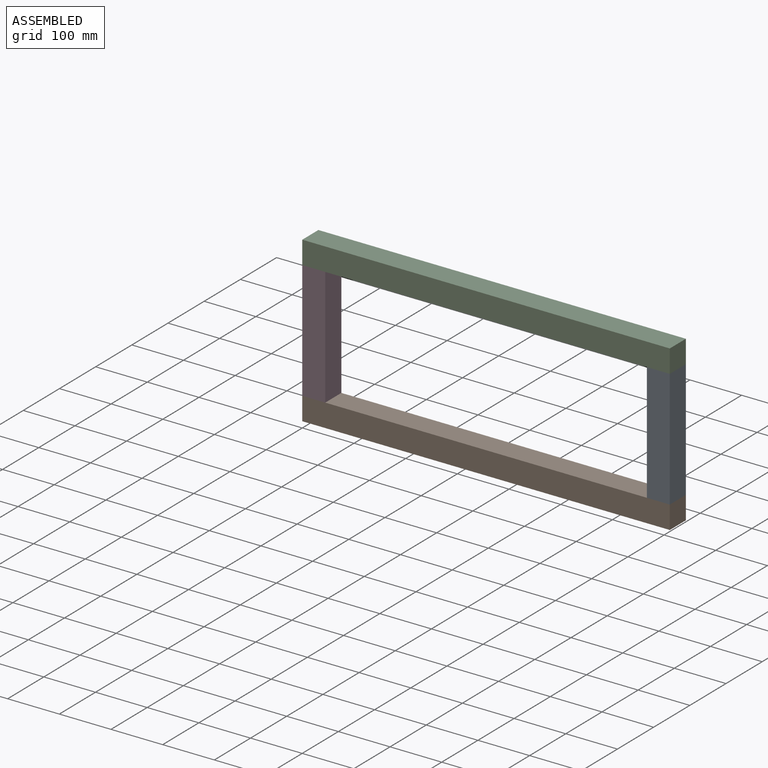
[diagram: assembled view]
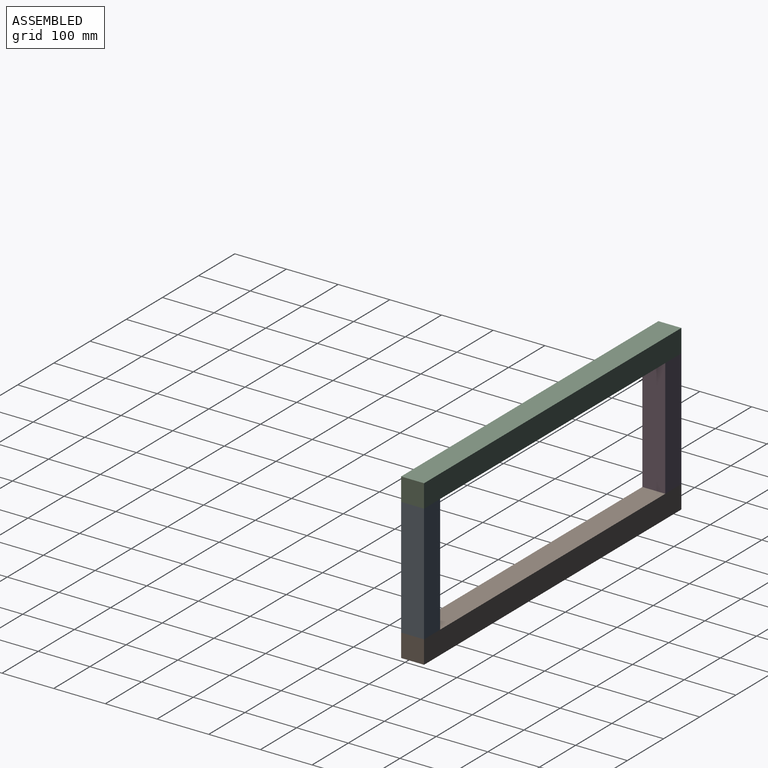
[diagram: assembled view, second angle]
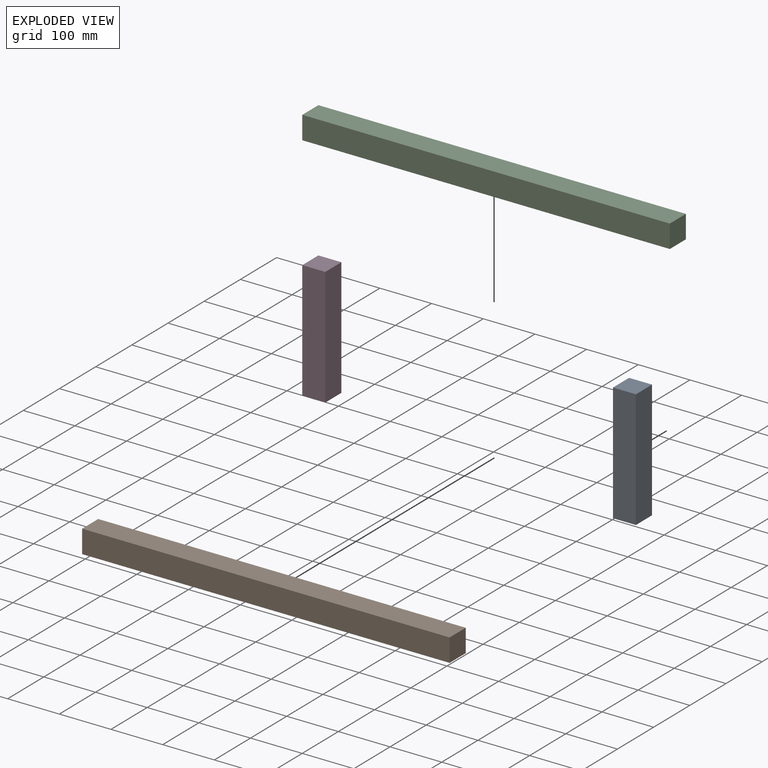
[diagram: exploded view]
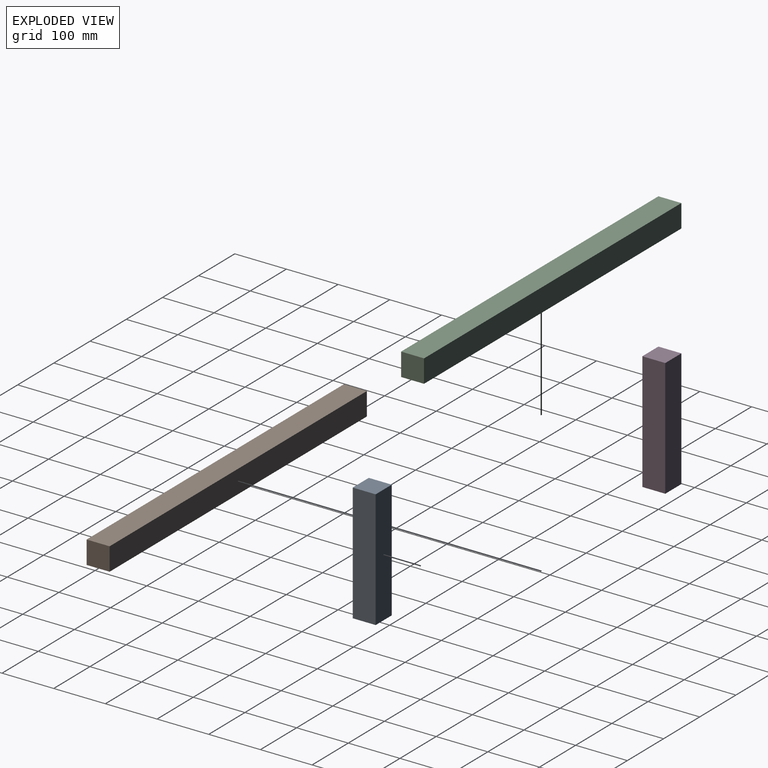
[diagram: exploded view, second angle]
ASSEMBLY  parts=4 mates=9
PART A: 6 faces, bbox 228.6x44.5x44.5 mm
  f0: plane 228.6x44.45mm, normal (0,1,0), area 10161.3mm2, adj f1,f3,f4,f5
  f1: plane 228.6x44.45mm, normal (0,0,1), area 10161.3mm2, adj f0,f2,f4,f5
  f2: plane 228.6x44.45mm, normal (0,-1,0), area 10161.3mm2, adj f1,f3,f4,f5
  f3: plane 228.6x44.45mm, normal (0,0,-1), area 10161.3mm2, adj f0,f2,f4,f5
  f4: plane 44.45x44.45mm, normal (1,0,0), area 1975.8mm2, adj f0,f1,f2,f3
  f5: plane 44.45x44.45mm, normal (-1,0,0), area 1975.8mm2, adj f0,f1,f2,f3
PART B: 6 faces, bbox 711.2x44.5x44.5 mm
  f0: plane 711.2x44.45mm, normal (0,0,1), area 31612.8mm2, adj f1,f3,f4,f5
  f1: plane 711.2x44.45mm, normal (0,-1,0), area 31612.8mm2, adj f0,f2,f4,f5
  f2: plane 711.2x44.45mm, normal (0,0,-1), area 31612.8mm2, adj f1,f3,f4,f5
  f3: plane 711.2x44.45mm, normal (0,1,0), area 31612.8mm2, adj f0,f2,f4,f5
  f4: plane 44.45x44.45mm, normal (1,0,0), area 1975.8mm2, adj f0,f1,f2,f3
  f5: plane 44.45x44.45mm, normal (-1,0,0), area 1975.8mm2, adj f0,f1,f2,f3
PART C: same geometry as B
PART D: same geometry as A
PLACE A rot(axis=(0,-1,0),90deg) t=(711.2,94.25,-228.6)mm
PLACE B t=(0,0,-273.05)mm
PLACE C at identity
PLACE D rot(axis=(0.71,0,-0.71),180deg) t=(44.45,-49.8,0)mm
MATE planar A.f2 <-> C.f1  axis (0,-1,0) through (688.98,0,-114.3)mm
MATE planar C.f2 <-> D.f5  axis (0,0,-1) through (355.6,22.23,0)mm
MATE planar D.f0 <-> B.f1  axis (0,-1,0) through (22.22,0,-114.3)mm
MATE planar D.f0 <-> C.f1  axis (0,-1,0) through (22.22,0,-114.3)mm
MATE planar B.f5 <-> D.f1  axis (-1,0,0) through (0,22.22,-250.82)mm
MATE planar A.f4 <-> C.f2  axis (0,0,1) through (688.98,22.23,0)mm
MATE planar C.f5 <-> D.f1  axis (-1,0,0) through (0,22.22,22.22)mm
MATE planar B.f0 <-> D.f4  axis (0,0,1) through (0,22.22,-228.6)mm
MATE planar A.f3 <-> C.f4  axis (1,0,0) through (711.2,22.23,-114.3)mm
